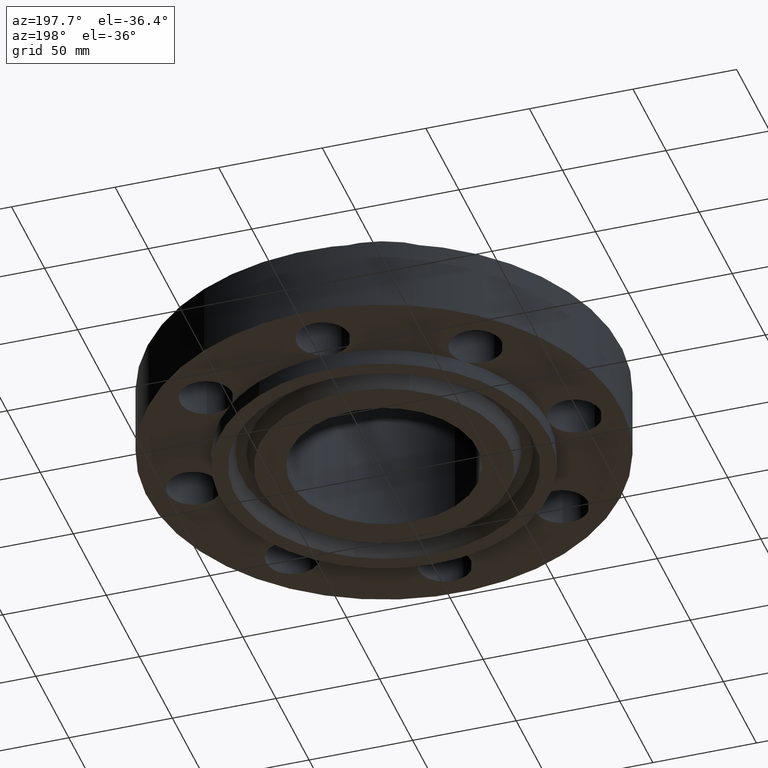
[diagram: clean part render]
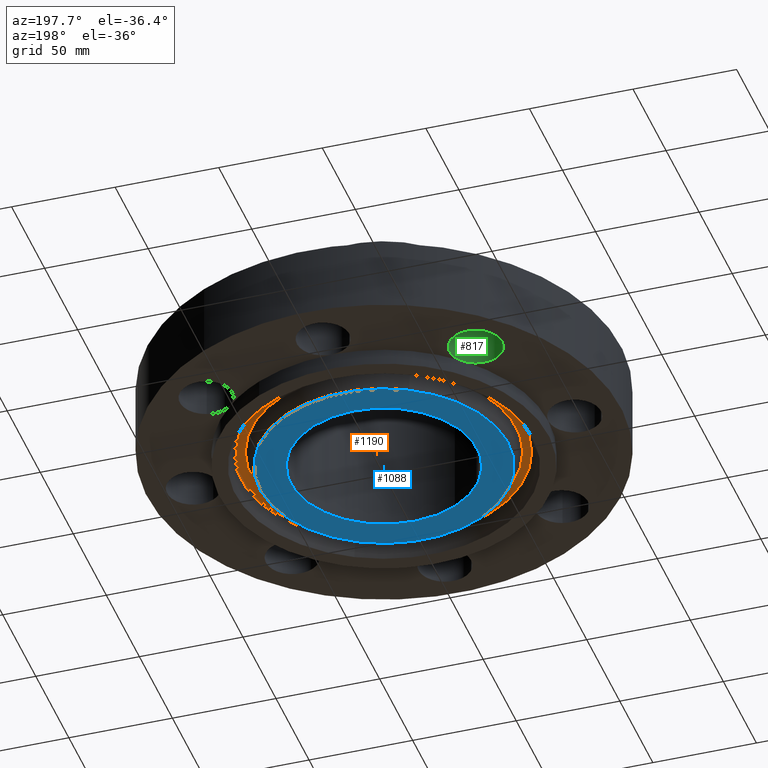
[diagram: same view with three faces highlighted in distinct colors, each labeled with its STEP entity id]
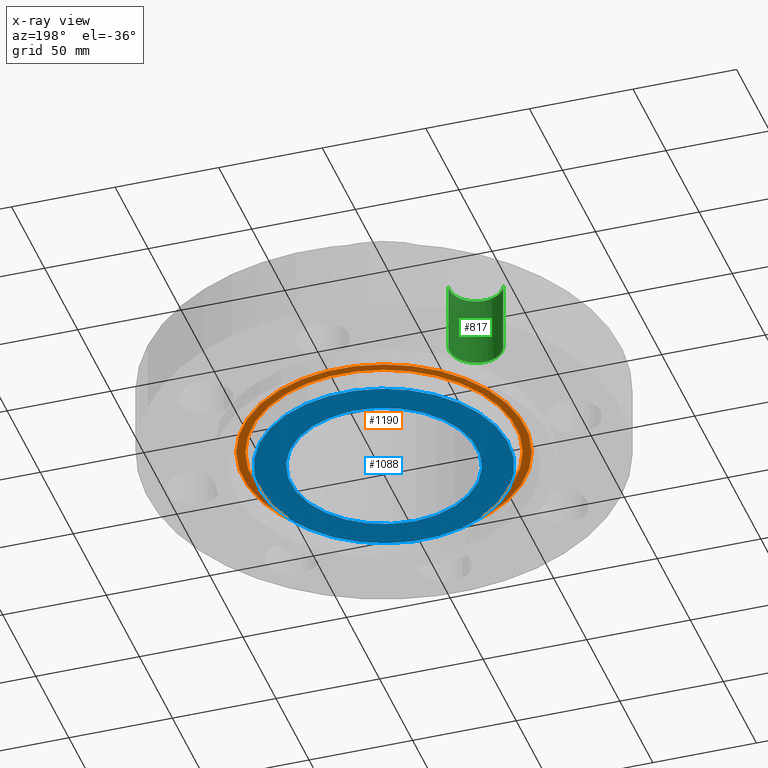
[diagram: x-ray of the same camera — body ghosted, the three highlighted faces saturated]
A machine part, auxiliary view with three faces highlighted in distinct colors.
The next image is the same camera in x-ray (body ghosted, the three faces saturated) — at least one of them is partly hidden behind the body in this view.
Their STEP definitions:

[orange] entity #1190 — the highlighted planar face has unit normal (0, 0, -1).
#554=AXIS2_PLACEMENT_3D('Plane Axis2P3D',#551,#552,#553) ;
#1112=AXIS2_PLACEMENT_3D('Circle Axis2P3D',#1110,#1111,$) ;
#1158=AXIS2_PLACEMENT_3D('Circle Axis2P3D',#1156,#1157,$) ;
#1174=AXIS2_PLACEMENT_3D('Circle Axis2P3D',#1172,#1173,$) ;
#1183=AXIS2_PLACEMENT_3D('Circle Axis2P3D',#1181,#1182,$) ;
#551=CARTESIAN_POINT('Axis2P3D Location',(0.,3.12500000001,0.)) ;
#1107=CARTESIAN_POINT('Vertex',(-1.28252129276,2.34763947924,-1.26757746906E-016)) ;
#1110=CARTESIAN_POINT('Axis2P3D Location',(0.,0.,-1.26757746906E-016)) ;
#1114=CARTESIAN_POINT('Vertex',(1.28252129276,-2.34763947924,-1.26757746906E-016)) ;
#1156=CARTESIAN_POINT('Axis2P3D Location',(0.,0.,-1.26757746906E-016)) ;
#1172=CARTESIAN_POINT('Axis2P3D Location',(0.,0.,0.)) ;
#1176=CARTESIAN_POINT('Vertex',(1.20473840152,-2.20525885187,1.31128703696E-016)) ;
#1178=CARTESIAN_POINT('Vertex',(-1.20473840152,2.20525885187,1.31128703696E-016)) ;
#1181=CARTESIAN_POINT('Axis2P3D Location',(0.,0.,0.)) ;
#552=DIRECTION('Axis2P3D Direction',(0.,0.,-0.0393700787402)) ;
#553=DIRECTION('Axis2P3D XDirection',(0.0393700787402,0.,0.)) ;
#1111=DIRECTION('Axis2P3D Direction',(0.,0.,0.0393700787402)) ;
#1157=DIRECTION('Axis2P3D Direction',(0.,0.,0.0393700787402)) ;
#1173=DIRECTION('Axis2P3D Direction',(0.,0.,-0.0393700787402)) ;
#1182=DIRECTION('Axis2P3D Direction',(0.,0.,-0.0393700787402)) ;
#1169=ORIENTED_EDGE('',*,*,#1116,.F.) ;
#1170=ORIENTED_EDGE('',*,*,#1160,.F.) ;
#1187=ORIENTED_EDGE('',*,*,#1180,.T.) ;
#1188=ORIENTED_EDGE('',*,*,#1185,.T.) ;
#1189=FACE_BOUND('',#1186,.T.) ;
#1190=ADVANCED_FACE('PartBody',(#1171,#1189),#555,.T.) ;
#1113=CIRCLE('generated circle',#1112,2.67512093014) ;
#1159=CIRCLE('generated circle',#1158,2.67512093014) ;
#1175=CIRCLE('generated circle',#1174,2.51287906988) ;
#1184=CIRCLE('generated circle',#1183,2.51287906988) ;
#1116=EDGE_CURVE('',#1108,#1115,#1113,.T.) ;
#1160=EDGE_CURVE('',#1115,#1108,#1159,.T.) ;
#1180=EDGE_CURVE('',#1177,#1179,#1175,.F.) ;
#1185=EDGE_CURVE('',#1179,#1177,#1184,.F.) ;
#1168=EDGE_LOOP('',(#1169,#1170)) ;
#1186=EDGE_LOOP('',(#1187,#1188)) ;
#1171=FACE_OUTER_BOUND('',#1168,.T.) ;
#555=PLANE('',#554) ;
#1108=VERTEX_POINT('',#1107) ;
#1115=VERTEX_POINT('',#1114) ;
#1177=VERTEX_POINT('',#1176) ;
#1179=VERTEX_POINT('',#1178) ;

[blue] entity #1088 — the highlighted planar face has unit normal (0, 0, -1).
#371=AXIS2_PLACEMENT_3D('Circle Axis2P3D',#369,#370,$) ;
#395=AXIS2_PLACEMENT_3D('Circle Axis2P3D',#393,#394,$) ;
#1041=AXIS2_PLACEMENT_3D('Plane Axis2P3D',#1038,#1039,#1040) ;
#1068=AXIS2_PLACEMENT_3D('Circle Axis2P3D',#1066,#1067,$) ;
#1077=AXIS2_PLACEMENT_3D('Circle Axis2P3D',#1075,#1076,$) ;
#366=CARTESIAN_POINT('Vertex',(0.850500905487,1.5568314648,-0.313000000001)) ;
#369=CARTESIAN_POINT('Axis2P3D Location',(0.,0.,-0.313000000001)) ;
#373=CARTESIAN_POINT('Vertex',(-0.850500905487,-1.5568314648,-0.313000000001)) ;
#393=CARTESIAN_POINT('Axis2P3D Location',(0.,0.,-0.313000000001)) ;
#1038=CARTESIAN_POINT('Axis2P3D Location',(0.,1.77400000001,-0.313000000001)) ;
#1066=CARTESIAN_POINT('Axis2P3D Location',(-5.59482469102E-016,2.79741234551E-016,-0.313000000001)) ;
#1070=CARTESIAN_POINT('Vertex',(-1.13120455834,2.07065605479,-0.313000000001)) ;
#1072=CARTESIAN_POINT('Vertex',(1.13120455834,-2.07065605479,-0.313000000001)) ;
#1075=CARTESIAN_POINT('Axis2P3D Location',(0.,0.,-0.313000000001)) ;
#370=DIRECTION('Axis2P3D Direction',(0.,0.,-0.0393700787402)) ;
#394=DIRECTION('Axis2P3D Direction',(0.,0.,-0.0393700787402)) ;
#1039=DIRECTION('Axis2P3D Direction',(0.,0.,-0.0393700787402)) ;
#1040=DIRECTION('Axis2P3D XDirection',(0.0393700787402,0.,0.)) ;
#1067=DIRECTION('Axis2P3D Direction',(0.,0.,-0.0393700787402)) ;
#1076=DIRECTION('Axis2P3D Direction',(0.,0.,-0.0393700787402)) ;
#1081=ORIENTED_EDGE('',*,*,#1074,.T.) ;
#1082=ORIENTED_EDGE('',*,*,#1079,.T.) ;
#1085=ORIENTED_EDGE('',*,*,#375,.F.) ;
#1086=ORIENTED_EDGE('',*,*,#397,.F.) ;
#1087=FACE_BOUND('',#1084,.T.) ;
#1088=ADVANCED_FACE('PartBody',(#1083,#1087),#1042,.T.) ;
#372=CIRCLE('generated circle',#371,1.77400000001) ;
#396=CIRCLE('generated circle',#395,1.77400000001) ;
#1069=CIRCLE('generated circle',#1068,2.35950000001) ;
#1078=CIRCLE('generated circle',#1077,2.35950000001) ;
#375=EDGE_CURVE('',#367,#374,#372,.T.) ;
#397=EDGE_CURVE('',#374,#367,#396,.T.) ;
#1074=EDGE_CURVE('',#1071,#1073,#1069,.T.) ;
#1079=EDGE_CURVE('',#1073,#1071,#1078,.T.) ;
#1080=EDGE_LOOP('',(#1081,#1082)) ;
#1084=EDGE_LOOP('',(#1085,#1086)) ;
#1083=FACE_OUTER_BOUND('',#1080,.T.) ;
#1042=PLANE('',#1041) ;
#367=VERTEX_POINT('',#366) ;
#374=VERTEX_POINT('',#373) ;
#1071=VERTEX_POINT('',#1070) ;
#1073=VERTEX_POINT('',#1072) ;

[green] entity #817 — the highlighted cylindrical surface (edge-blend (fillet) strip) has radius 12.7 mm, axis along (0, 0, -1).
#600=AXIS2_PLACEMENT_3D('Circle Axis2P3D',#598,#599,$) ;
#614=AXIS2_PLACEMENT_3D('Circle Axis2P3D',#612,#613,$) ;
#777=AXIS2_PLACEMENT_3D('Cylinder Axis2P3D',#774,#775,#776) ;
#807=AXIS2_PLACEMENT_3D('Circle Axis2P3D',#805,#806,$) ;
#471=CARTESIAN_POINT('Vertex',(-2.20970869122,2.20970869122,0.)) ;
#598=CARTESIAN_POINT('Axis2P3D Location',(-2.56326208181,2.56326208181,0.)) ;
#602=CARTESIAN_POINT('Vertex',(-2.08348726682,2.70403184738,0.)) ;
#609=CARTESIAN_POINT('Vertex',(-3.04303689681,2.42249231624,0.)) ;
#612=CARTESIAN_POINT('Axis2P3D Location',(-2.56326208181,2.56326208181,0.)) ;
#774=CARTESIAN_POINT('Axis2P3D Location',(-2.56326208181,2.56326208181,1.37606299213)) ;
#779=CARTESIAN_POINT('Line Origine',(-3.04303689681,2.42249231624,0.690000000003)) ;
#783=CARTESIAN_POINT('Vertex',(-3.04303689681,2.42249231624,1.38000000001)) ;
#786=CARTESIAN_POINT('Line Origine',(-2.08348726682,2.70403184738,0.690000000003)) ;
#790=CARTESIAN_POINT('Vertex',(-2.08348726682,2.70403184738,1.38000000001)) ;
#805=CARTESIAN_POINT('Axis2P3D Location',(-2.56326208181,2.56326208181,1.38000000001)) ;
#599=DIRECTION('Axis2P3D Direction',(0.,0.,-0.0393700787402)) ;
#613=DIRECTION('Axis2P3D Direction',(0.,0.,-0.0393700787402)) ;
#775=DIRECTION('Axis2P3D Direction',(0.,0.,-0.0393700787402)) ;
#776=DIRECTION('Axis2P3D XDirection',(0.0377775444876,0.0110842335096,0.)) ;
#780=DIRECTION('Vector Direction',(0.,0.,-0.0393700787402)) ;
#787=DIRECTION('Vector Direction',(0.,0.,-0.0393700787402)) ;
#806=DIRECTION('Axis2P3D Direction',(0.,0.,-0.0393700787402)) ;
#781=VECTOR('Line Direction',#780,0.0393700787402) ;
#788=VECTOR('Line Direction',#787,0.0393700787402) ;
#811=ORIENTED_EDGE('',*,*,#792,.F.) ;
#812=ORIENTED_EDGE('',*,*,#604,.T.) ;
#813=ORIENTED_EDGE('',*,*,#616,.T.) ;
#814=ORIENTED_EDGE('',*,*,#785,.T.) ;
#815=ORIENTED_EDGE('',*,*,#809,.F.) ;
#817=ADVANCED_FACE('PartBody',(#816),#778,.F.) ;
#601=CIRCLE('generated circle',#600,0.500000000002) ;
#615=CIRCLE('generated circle',#614,0.500000000002) ;
#808=CIRCLE('generated circle',#807,0.500000000002) ;
#778=CYLINDRICAL_SURFACE('generated cylinder',#777,0.500000000002) ;
#604=EDGE_CURVE('',#603,#472,#601,.T.) ;
#616=EDGE_CURVE('',#472,#610,#615,.T.) ;
#785=EDGE_CURVE('',#610,#784,#782,.F.) ;
#792=EDGE_CURVE('',#603,#791,#789,.F.) ;
#809=EDGE_CURVE('',#791,#784,#808,.T.) ;
#810=EDGE_LOOP('',(#811,#812,#813,#814,#815)) ;
#816=FACE_OUTER_BOUND('',#810,.T.) ;
#782=LINE('Line',#779,#781) ;
#789=LINE('Line',#786,#788) ;
#472=VERTEX_POINT('',#471) ;
#603=VERTEX_POINT('',#602) ;
#610=VERTEX_POINT('',#609) ;
#784=VERTEX_POINT('',#783) ;
#791=VERTEX_POINT('',#790) ;